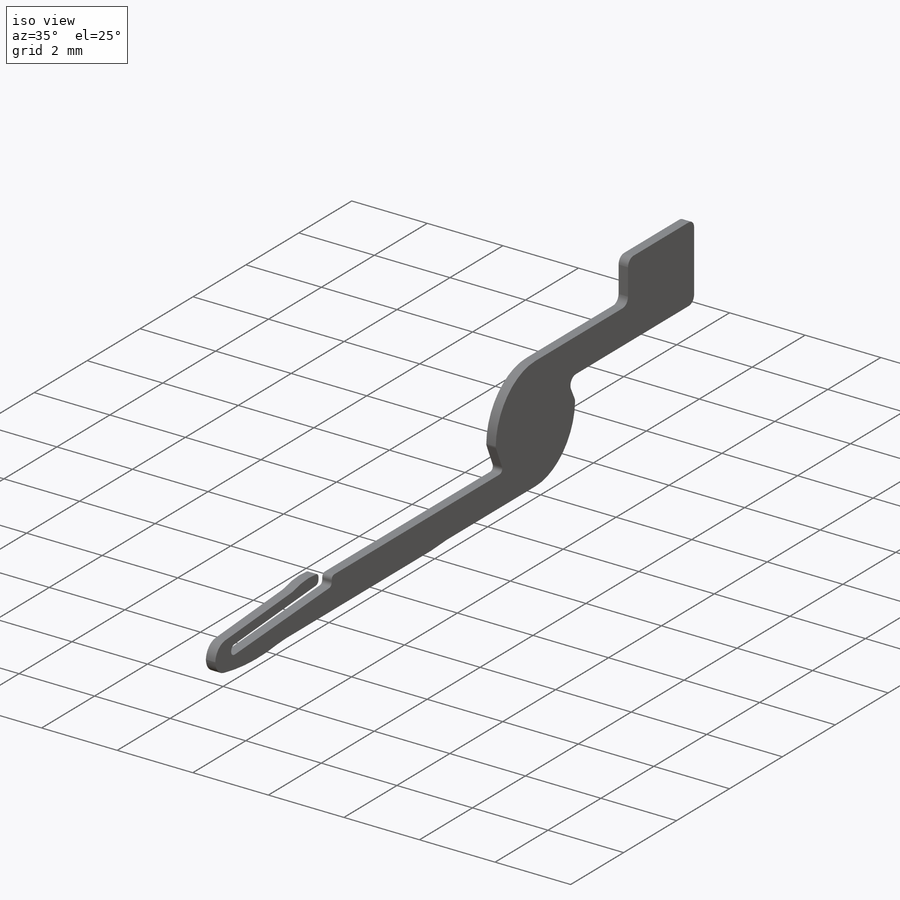
[diagram: iso view]
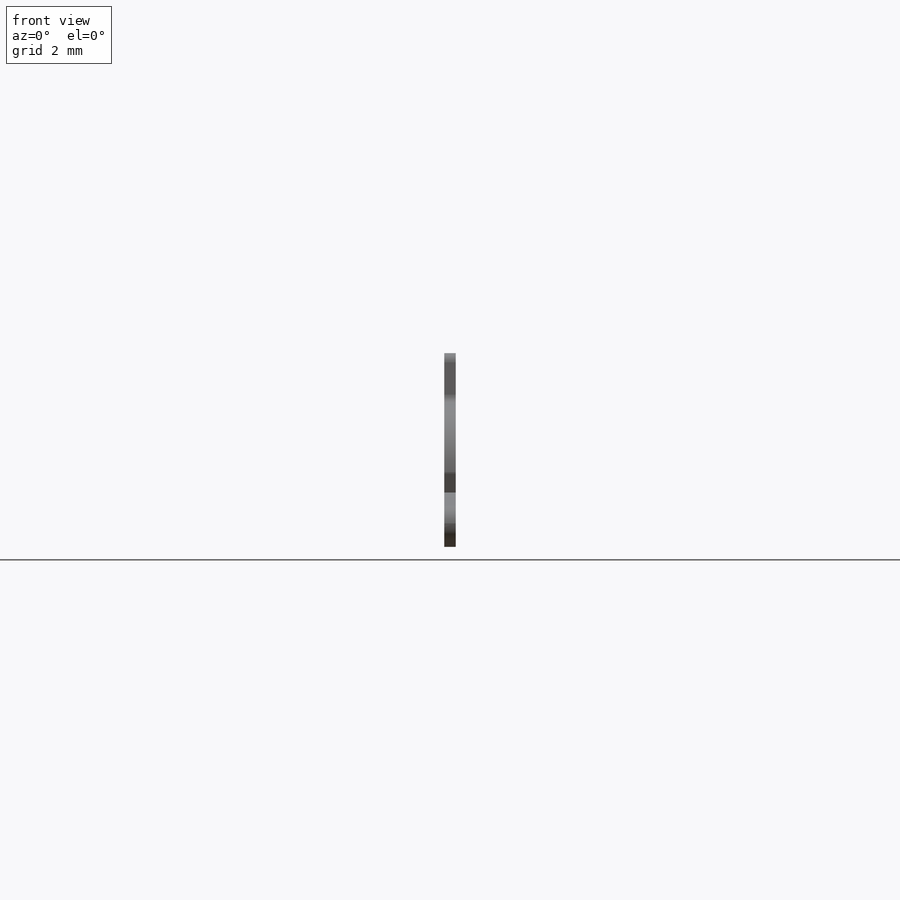
[diagram: front view]
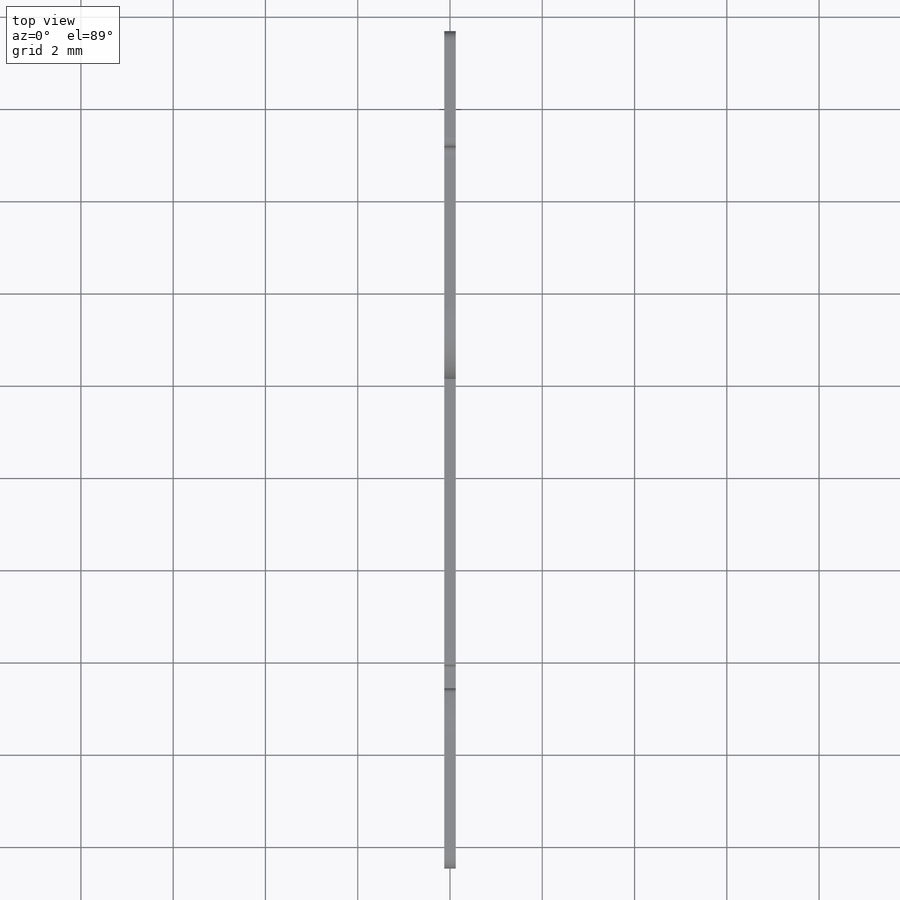
[diagram: top view]
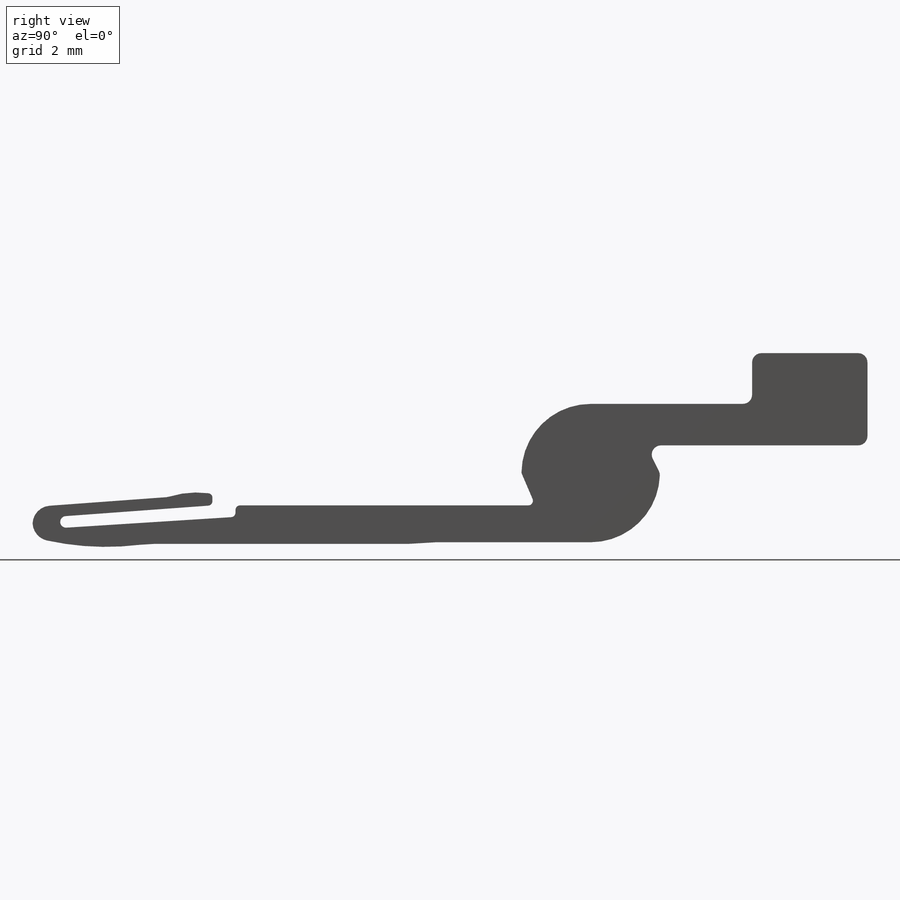
[diagram: right view]
SOLIDWORKS PART (.sldprt)
format: sldprt  version: not decoded by parser v0  size: 281,600 bytes
history: native  units: mm
features: fillet x6, plane x3, material x1, sketch x1, extrude x1 (+10 scaffold rows collapsed)
feature tree (22):
  scaffold x10  (default folders/planes/origin — collapsed)
  material  "1.4310 (X10CrNi18-8) mod"
  plane  "Ebene vorne"
  plane  "Ebene oben"
  plane  "Ebene rechts"
  sketch  "Skizze1"  dims[c1.D1=1.5mm c1.D11=6.0mm c1.D21=6.0mm c2.D21=6.0mm c3.D21=6.0mm c4.D21=6.0mm c5.D21=6.0mm c6.D21=6.0mm c7.D21=6.0mm c8.D21=6.0mm c9.D21=6.0mm c10.D21=6.0mm c11.D21=6.0mm c12.D21=6.0mm c13.D21=6.0mm c14.D21=6.0mm c15.D21=6.0mm c16.D21=6.0mm c17.D21=6.0mm c18.D21=6.0mm c19.D21=6.0mm c20.D21=6.0mm c21.D21=6.0mm c22.D21=6.0mm c23.D21=6.0mm c24.D21=6.0mm c25.D21=6.0mm c26.D21=6.0mm c27.D21=6.0mm c28.D21=6.0mm c29.D21=6.0mm c30.D21=6.0mm c31.D21=6.0mm c32.D21=6.0mm c33.D21=6.0mm c34.D21=6.0mm c35.D21=6.0mm c36.D21=6.0mm c37.D21=6.0mm c38.D21=6.0mm c39.D21=6.0mm c40.D21=6.0mm c41.D21=6.0mm c42.D21=6.0mm c43.D21=6.0mm c44.D21=6.0mm c45.D21=6.0mm c46.D21=6.0mm c47.D21=6.0mm c48.D21=6.0mm c49.D21=6.0mm c50.D21=6.0mm c51.D21=6.0mm c52.D21=6.0mm c52.D8=2.0mm c53.D21=0.3mm c53.D2=6.0mm c53.D3=0.7mm c53.D4=0.4mm c53.D5=0.1mm c53.D6=1.2mm c53.D7=0.25mm c53.D8=0.4mm c53.D9=0.8mm c53.D10=0.25mm c53.D12=4.0mm c53.D13=0.6mm c53.D14=1.0mm c53.D15=0.035mm c53.D16=2.0mm c53.D17=0.3mm c53.D18=11.5mm c53.D19=4.5mm c53.D20=0.25mm c54.D21=~0.611783mm c55.D21=~3.94868mm c56.D21=270.0deg c57.D21=0.35mm c57.D22=0.6mm c57.D4=0.15mm c57.D6=0.8mm c57.D19=3.3mm c57.D3=1.5mm c57.D23=2.5mm c57.D24=0.6mm c57.D25=0.3mm c57.D12=0.7mm c57.D13=0.7mm c58.D12=0.7mm c58.D13=0.3mm c58.D16=0.6mm c58.D24=0.3mm c58.D25=0.3mm c59.D12=0.3mm c59.D13=0.3mm c60.D12=0.7mm c60.D24=0.25mm c60.D26=6.5mm c60.D27=6.5mm c60.D3=2.0mm c61.D27=1.5mm]
  extrude  "Aufsatz-Linear austragen1"  Depth=0.25mm
  fillet  "Verrundung1"  Radius=0.4mm
  fillet  "Verrundung2"  Radius=0.2mm
  fillet  "Verrundung3"  Radius=2.55mm
  fillet  "Verrundung4"  Radius=0.1mm
  fillet  "Verrundung5"  Radius=0.125mm
  fillet  "Verrundung6"  Radius=0.1mm
decode coverage: 8 of 8 modeling features carry decoded parameters
note: ~ marks probable driven/reference dimensions
note: suppression state not decoded; provenance and decode notes live in map.json
